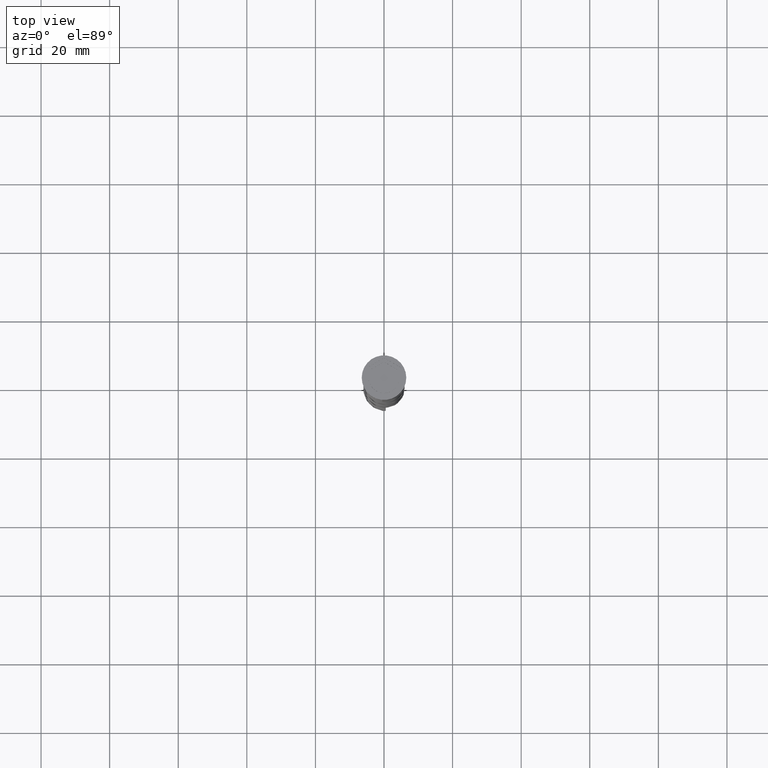
[diagram: clean part render]
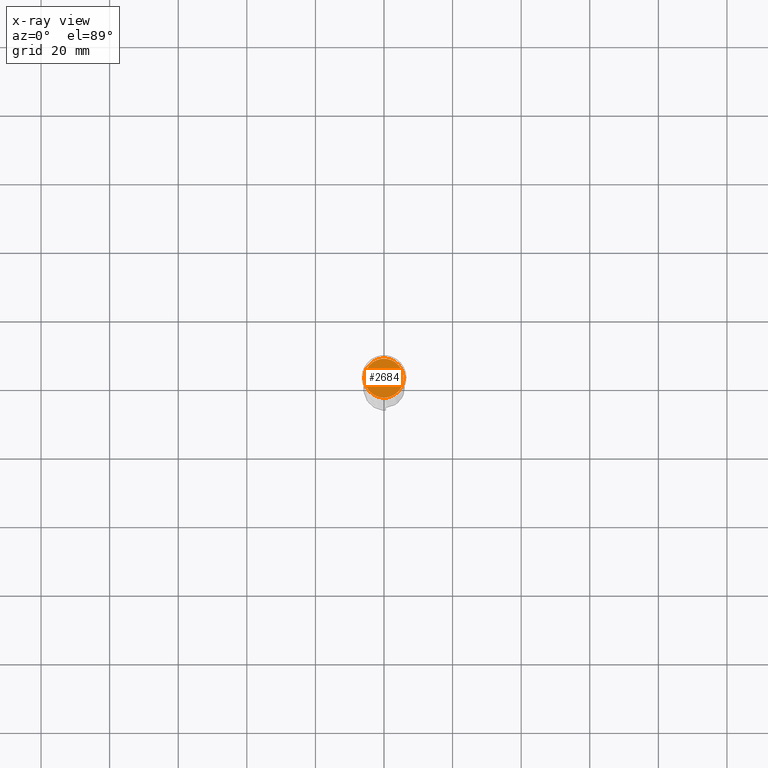
[diagram: x-ray — body ghosted, one internal face saturated and labeled with its STEP entity id]
A machine part, top view, then the same camera in x-ray: the body is ghosted and one INTERNAL B-rep face — a face not visible from any outside direction — is saturated and labeled: STEP entity #2684.
In plain terms, the highlighted planar face has unit normal (0, 0, -1).
Its self-contained STEP definition (entity closure, byte-faithful):
#204 = DIRECTION ( 'NONE',  ( -1.000000000000000000, 0.000000000000000000, -0.000000000000000000 ) ) ;
#339 = DIRECTION ( 'NONE',  ( -0.000000000000000000, -0.000000000000000000, 1.000000000000000000 ) ) ;
#412 = VERTEX_POINT ( 'NONE', #2855 ) ;
#857 = AXIS2_PLACEMENT_3D ( 'NONE', #3833, #1132, #204 ) ;
#978 = AXIS2_PLACEMENT_3D ( 'NONE', #1280, #339, #2464 ) ;
#1132 = DIRECTION ( 'NONE',  ( 0.000000000000000000, 0.000000000000000000, -1.000000000000000000 ) ) ;
#1280 = CARTESIAN_POINT ( 'NONE',  ( 0.000000000000000000, 0.000000000000000000, -10.50000000000000178 ) ) ;
#1892 = EDGE_LOOP ( 'NONE', ( #2733, #3343 ) ) ;
#2209 = EDGE_CURVE ( 'NONE', #3729, #412, #3751, .T. ) ;
#2326 = AXIS2_PLACEMENT_3D ( 'NONE', #2857, #3748, #3461 ) ;
#2464 = DIRECTION ( 'NONE',  ( -1.000000000000000000, 0.000000000000000000, 0.000000000000000000 ) ) ;
#2641 = FACE_OUTER_BOUND ( 'NONE', #1892, .T. ) ;
#2684 = ADVANCED_FACE ( 'NONE', ( #2641 ), #2962, .F. ) ;
#2733 = ORIENTED_EDGE ( 'NONE', *, *, #2209, .T. ) ;
#2841 = CIRCLE ( 'NONE', #2326, 5.700000000000002842 ) ;
#2855 = CARTESIAN_POINT ( 'NONE',  ( 5.700000000000002842, 7.164183775012019380E-16, -10.50000000000000178 ) ) ;
#2857 = CARTESIAN_POINT ( 'NONE',  ( 0.000000000000000000, 0.000000000000000000, -10.50000000000000178 ) ) ;
#2962 = PLANE ( 'NONE',  #857 ) ;
#3200 = EDGE_CURVE ( 'NONE', #412, #3729, #2841, .T. ) ;
#3343 = ORIENTED_EDGE ( 'NONE', *, *, #3200, .T. ) ;
#3461 = DIRECTION ( 'NONE',  ( -1.000000000000000000, 0.000000000000000000, 0.000000000000000000 ) ) ;
#3729 = VERTEX_POINT ( 'NONE', #3817 ) ;
#3748 = DIRECTION ( 'NONE',  ( -0.000000000000000000, -0.000000000000000000, 1.000000000000000000 ) ) ;
#3751 = CIRCLE ( 'NONE', #978, 5.700000000000002842 ) ;
#3817 = CARTESIAN_POINT ( 'NONE',  ( -5.700000000000002842, 0.000000000000000000, -10.50000000000000178 ) ) ;
#3833 = CARTESIAN_POINT ( 'NONE',  ( 0.000000000000000000, 0.000000000000000000, -10.50000000000000178 ) ) ;